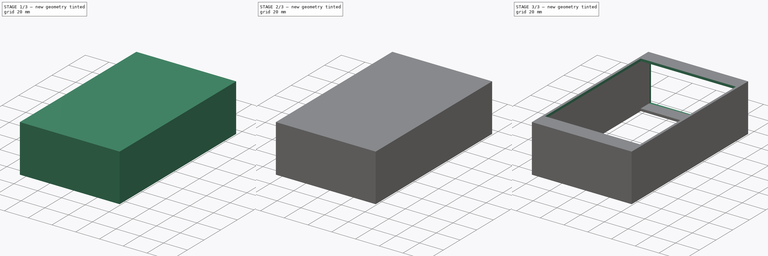
[diagram: build sequence overview — one tinted view per stage of 3, left to right]
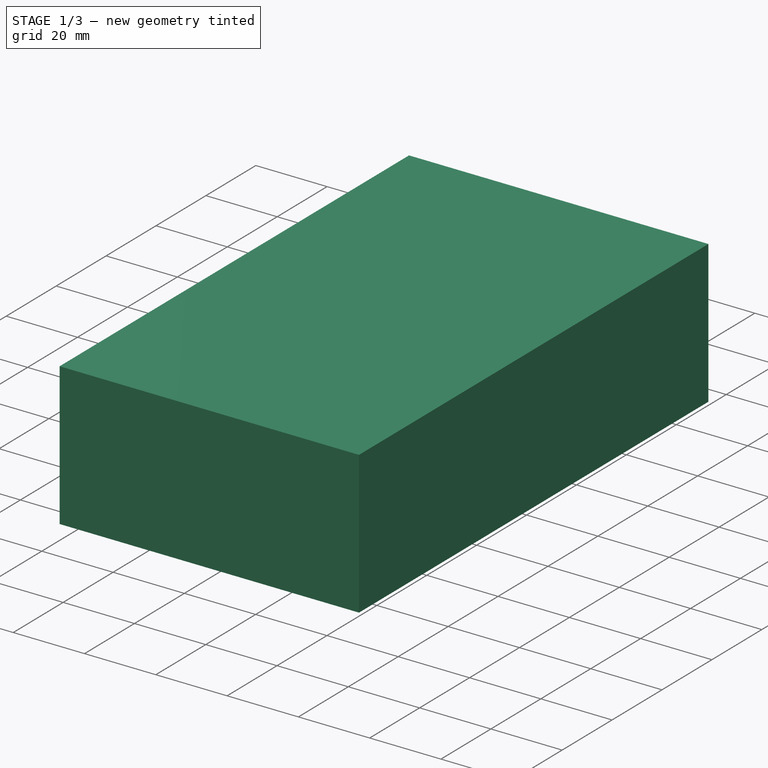
[diagram: stage 1 of 3 — iso view after this stage's code; geometry added in this stage tinted green]
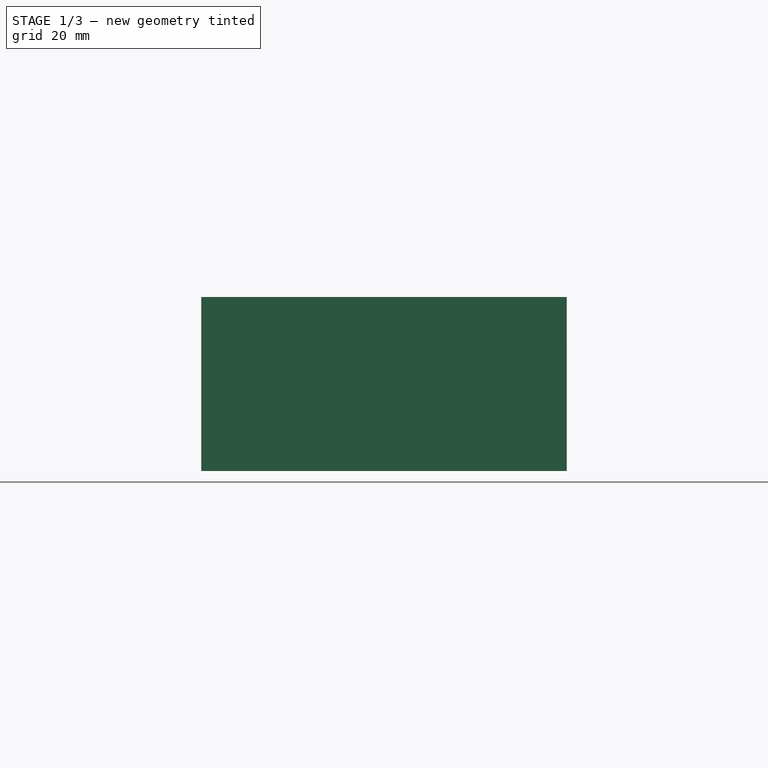
[diagram: stage 1 of 3 — front view after this stage's code; geometry added in this stage tinted green]
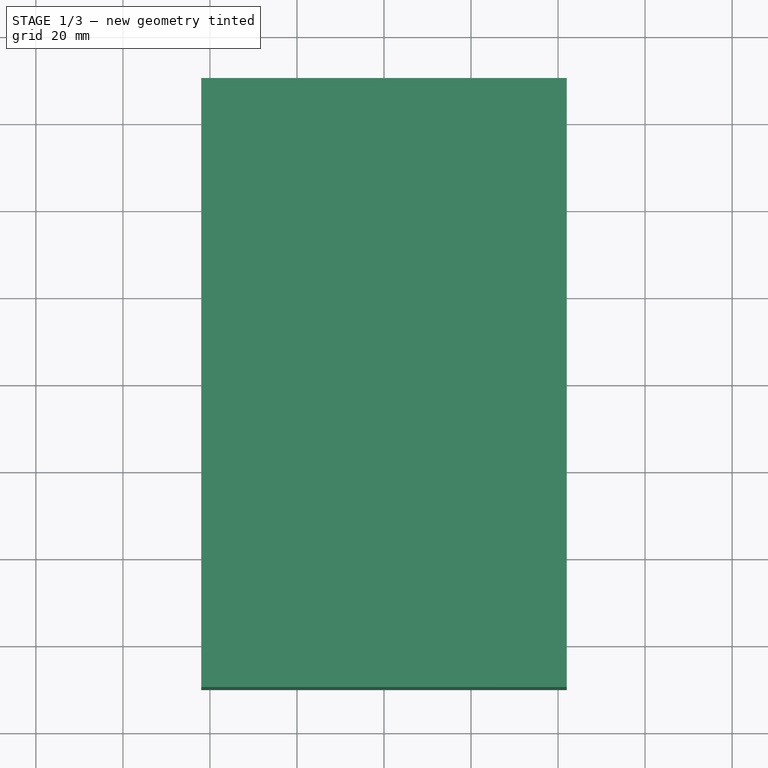
[diagram: stage 1 of 3 — top view after this stage's code; geometry added in this stage tinted green]
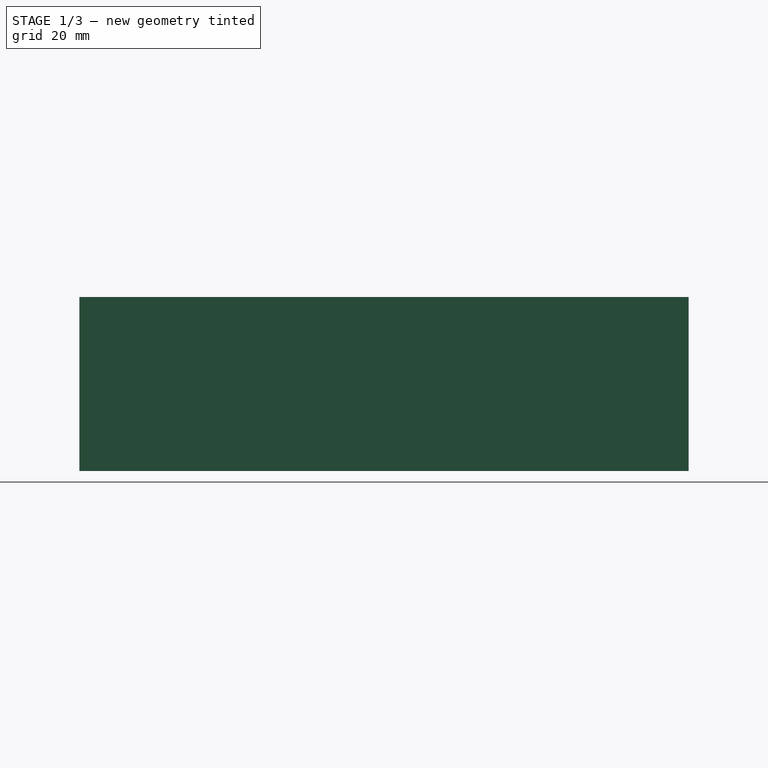
[diagram: stage 1 of 3 — right view after this stage's code; geometry added in this stage tinted green]
FCSTD DOCUMENT  (FreeCAD 0.19R24291 (Git))
Label: multi_meter_case
License: All rights reserved
LicenseURL: http://en.wikipedia.org/wiki/All_rights_reserved
objects: Sketcher::SketchObject×5, PartDesign::Pocket×4, PartDesign::Pad×1, PartDesign::Body×1
note: 16 computed .brp shape members not serialized (recipe doc carries the construction recipe); baked Part::Feature solids carry a one-line shape summary decoded from their .brp

FEATURE [Sketcher::SketchObject] Sketch
  FullyConstrained = true
  MapMode = 5
  Support = -> [XY_Plane]
  sketch-geometry (4):
    g0: LineSegment StartX=-42 StartY=70 StartZ=0 EndX=42 EndY=70 EndZ=0
    g1: LineSegment StartX=42 StartY=70 StartZ=0 EndX=42 EndY=-70 EndZ=0
    g2: LineSegment StartX=42 StartY=-70 StartZ=0 EndX=-42 EndY=-70 EndZ=0
    g3: LineSegment StartX=-42 StartY=-70 StartZ=0 EndX=-42 EndY=70 EndZ=0
  constraints (10):
    c: Coincident(g0,g1)
    c: Coincident(g1,g2)
    c: Coincident(g2,g3)
    c: Coincident(g3,g0)
    c: Horizontal(g0)
    c: Vertical(g3)
    c: DistanceX(g2,g2) = 84
    c: DistanceY(g3,g3) = 140
    c: Symmetric(g1,g2,g-2)
    c: Symmetric(g1,g0,g-1)
FEATURE [PartDesign::Pad] Pad
  Direction = (1,1,1)
  Length = 40
  Length2 = 100
  Profile = -> Sketch
  Refine = true
  Type = 0
FEATURE [Sketcher::SketchObject] Sketch001
  AttachmentOffset = pos=(0,0,38) rot=(0,0,1;0rad)
  FullyConstrained = true
  MapMode = 5
  Placement = pos=(0,0,38) rot=(0,0,1;0rad)
  Support = -> [XY_Plane]
  sketch-geometry (4):
    g0: LineSegment StartX=-40 StartY=68 StartZ=0 EndX=40 EndY=68 EndZ=0
    g1: LineSegment StartX=40 StartY=68 StartZ=0 EndX=40 EndY=-68 EndZ=0
    g2: LineSegment StartX=40 StartY=-68 StartZ=0 EndX=-40 EndY=-68 EndZ=0
    g3: LineSegment StartX=-40 StartY=-68 StartZ=0 EndX=-40 EndY=68 EndZ=0
  constraints (10):
    c: Coincident(g0,g1)
    c: Coincident(g1,g2)
    c: Coincident(g2,g3)
    c: Coincident(g3,g0)
    c: Horizontal(g0)
    c: Vertical(g3)
    c: DistanceX(g2,g2) = 80
    c: DistanceY(g3,g3) = 136
    c: Symmetric(g1,g2,g-2)
    c: Symmetric(g1,g0,g-1)
FEATURE [PartDesign::Pocket] Pocket
  BaseFeature = -> Pad
  Length = 36
  Length2 = 100
  Profile = -> Sketch001
  Refine = true
  Type = 0
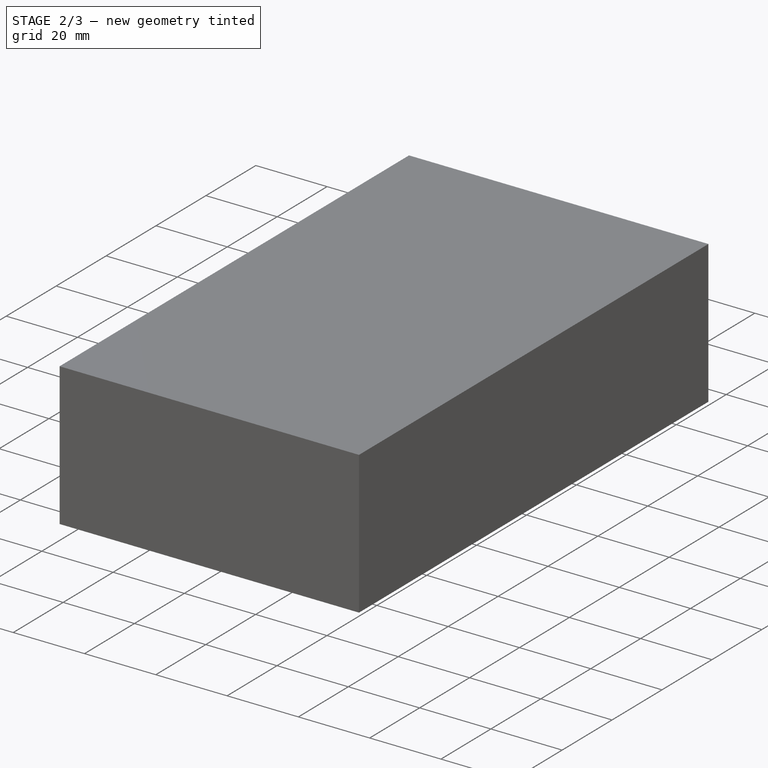
[diagram: stage 2 of 3 — iso view after this stage's code; geometry added in this stage tinted green]
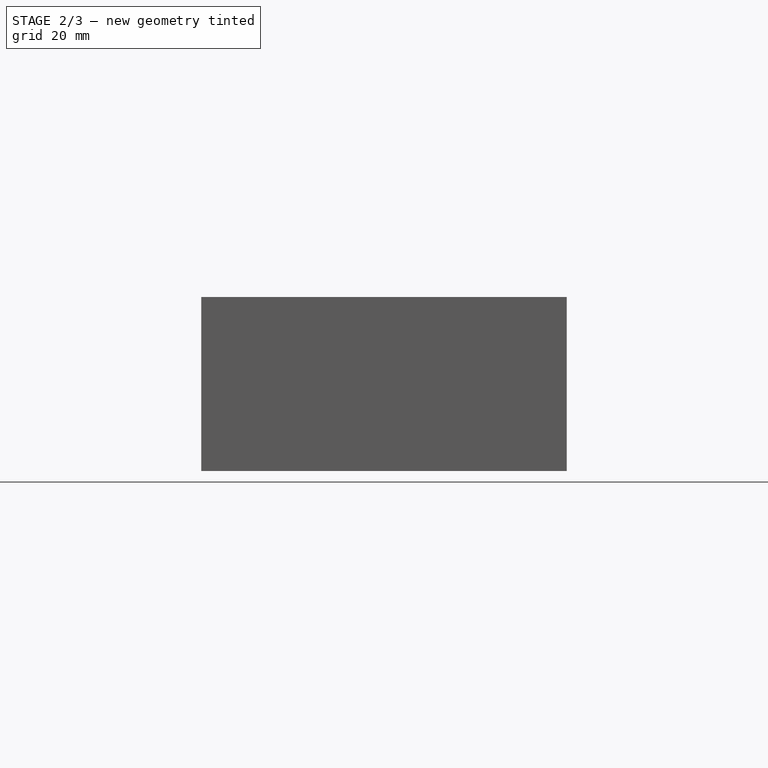
[diagram: stage 2 of 3 — front view after this stage's code; geometry added in this stage tinted green]
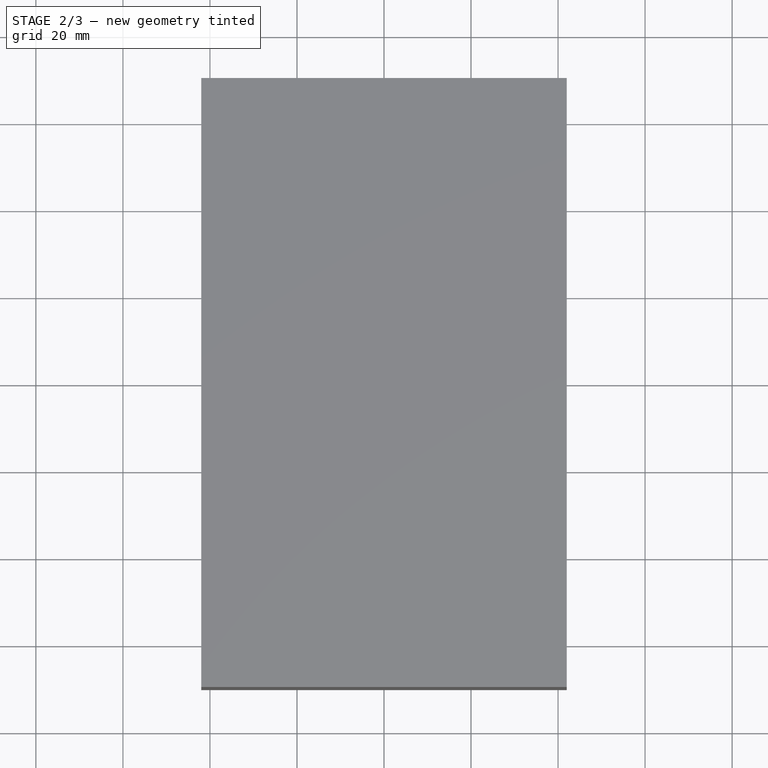
[diagram: stage 2 of 3 — top view after this stage's code; geometry added in this stage tinted green]
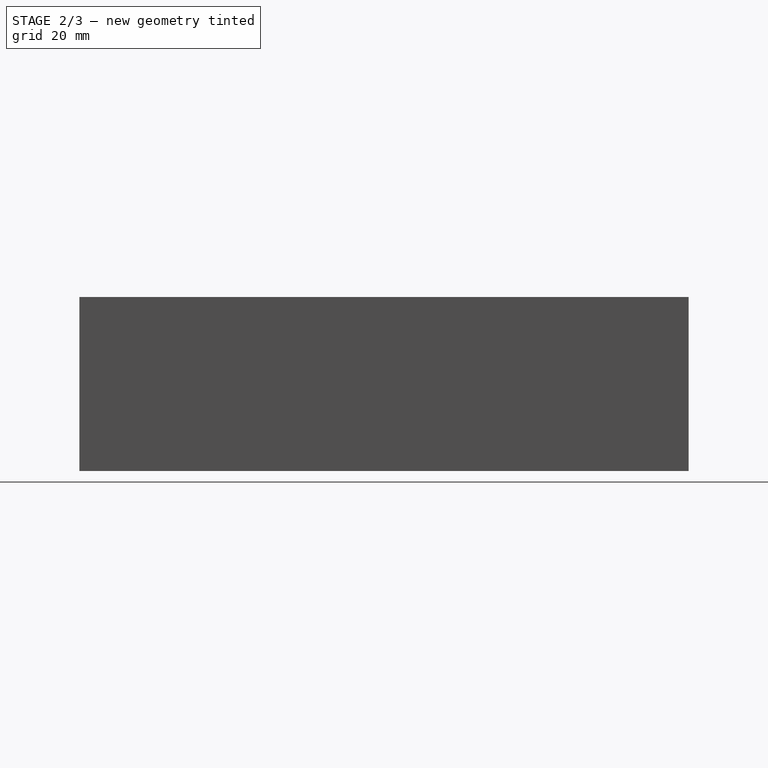
[diagram: stage 2 of 3 — right view after this stage's code; geometry added in this stage tinted green]
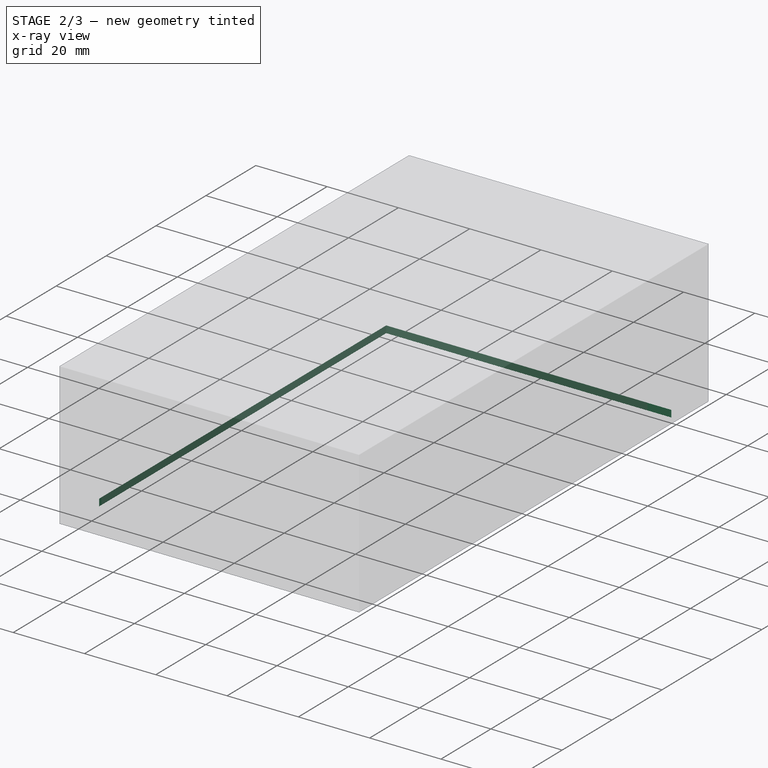
[diagram: stage 2 of 3 — x-ray composite at the iso view; earlier geometry ghosted, this stage's added geometry solid]
FEATURE [Sketcher::SketchObject] Sketch004
  ExternalGeometry = -> [Pocket]
  FullyConstrained = false
  MapMode = 5
  Support = -> [XY_Plane]
  sketch-geometry (4):
    g0: LineSegment StartX=-40 StartY=58 StartZ=0 EndX=40 EndY=58 EndZ=0
    g1: LineSegment StartX=40 StartY=58 StartZ=0 EndX=40 EndY=-57 EndZ=0
    g2: LineSegment StartX=40 StartY=-57 StartZ=0 EndX=-40 EndY=-57 EndZ=0
    g3: LineSegment StartX=-40 StartY=-57 StartZ=0 EndX=-40 EndY=58 EndZ=0
  constraints (10):
    c: Coincident(g0,g1)
    c: Coincident(g3,g0)
    c: Vertical(g1)
    c: Vertical(g3)
    c: Coincident(g2,g3)
    c: Coincident(g2,g1)
    c: Horizontal(g2)
    c: DistanceY(g1,g1) = 115
    c: Symmetric(g0,g0,g-2)
    c: DistanceX(g0,g0) = 80
FEATURE [PartDesign::Pocket] Pocket003
  BaseFeature = -> Pocket
  Length = 4
  Length2 = 100
  Profile = -> Sketch004
  Refine = true
  Reversed = true
  Type = 0
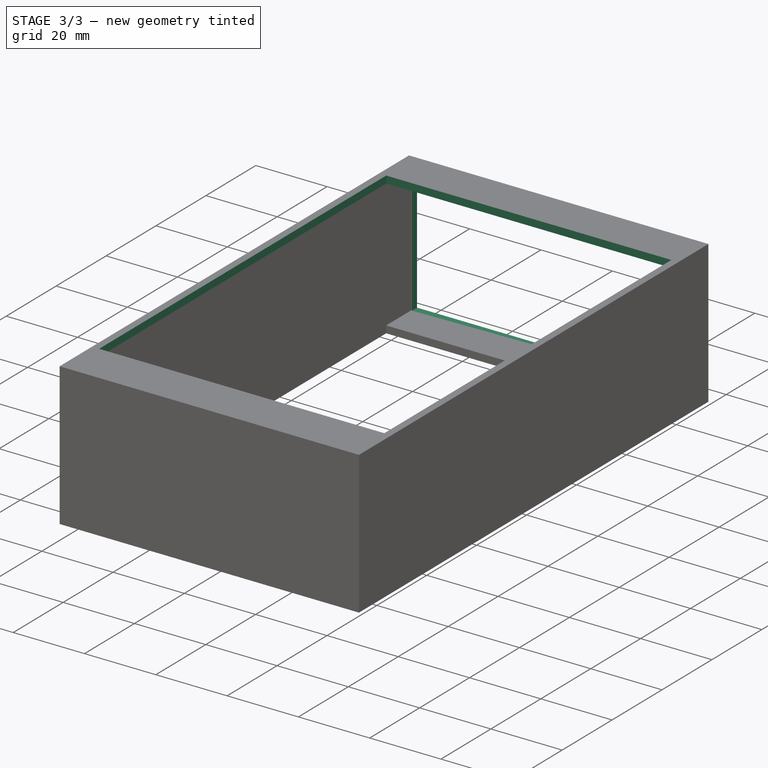
[diagram: stage 3 of 3 — iso view after this stage's code; geometry added in this stage tinted green]
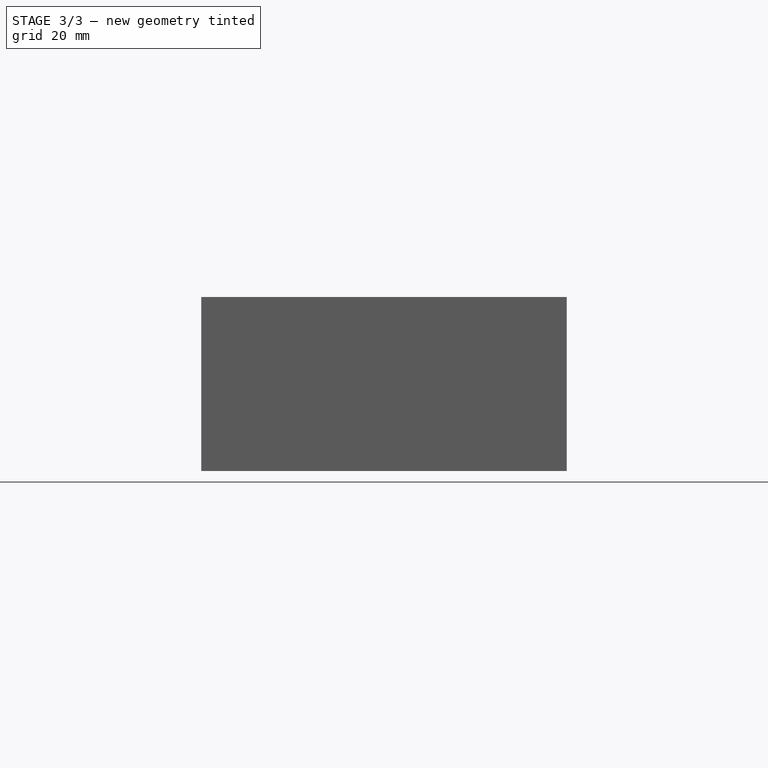
[diagram: stage 3 of 3 — front view after this stage's code; geometry added in this stage tinted green]
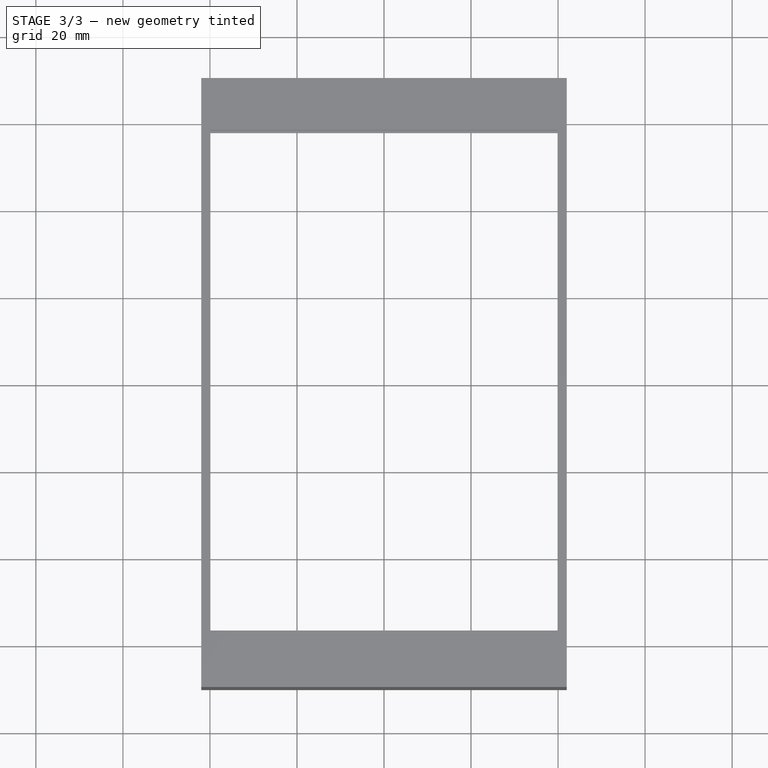
[diagram: stage 3 of 3 — top view after this stage's code; geometry added in this stage tinted green]
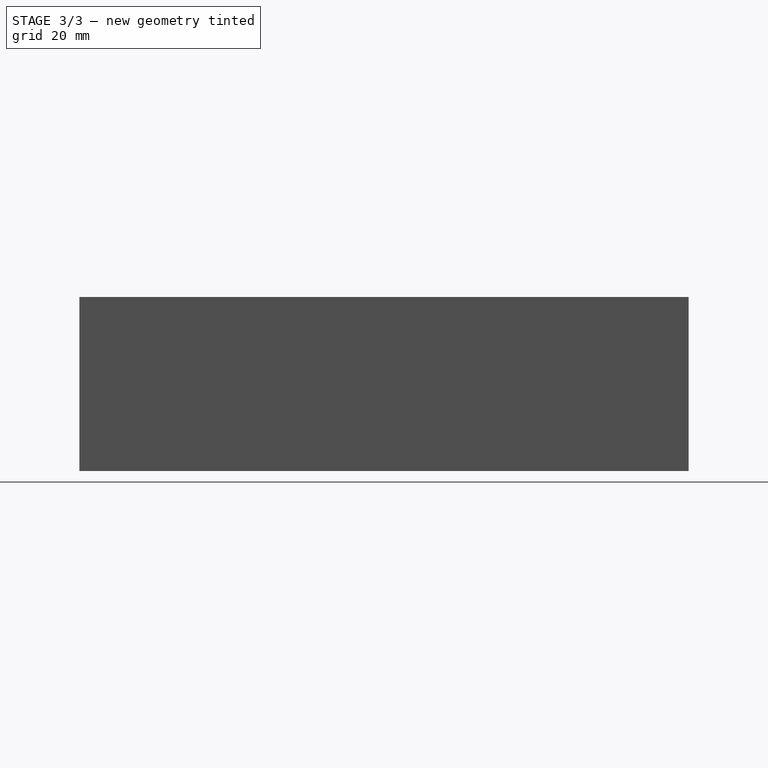
[diagram: stage 3 of 3 — right view after this stage's code; geometry added in this stage tinted green]
FEATURE [Sketcher::SketchObject] Sketch005
  AttachmentOffset = pos=(0,0,-70) rot=(0,0,1;0rad)
  ExternalGeometry = -> [Pocket003]
  FullyConstrained = false
  MapMode = 5
  Placement = pos=(0,70,1.55e-14) rot=(1,0,0;1.5708rad)
  Support = -> [XZ_Plane]
  sketch-geometry (4):
    g0: LineSegment StartX=-39.7522 StartY=38 StartZ=0 EndX=40 EndY=38 EndZ=0
    g1: LineSegment StartX=40 StartY=38 StartZ=0 EndX=40 EndY=2 EndZ=0
    g2: LineSegment StartX=40 StartY=2 StartZ=0 EndX=-39.7522 EndY=2 EndZ=0
    g3: LineSegment StartX=-39.7522 StartY=2 StartZ=0 EndX=-39.7522 EndY=38 EndZ=0
  constraints (9):
    c: Coincident(g0,g1)
    c: Coincident(g1,g2)
    c: Coincident(g2,g3)
    c: Coincident(g3,g0)
    c: Horizontal(g0)
    c: Horizontal(g2)
    c: Vertical(g1)
    c: Vertical(g3)
    c: Coincident(g0,g-3)
FEATURE [PartDesign::Pocket] Pocket004
  BaseFeature = -> Pocket003
  Length = 2
  Length2 = 100
  Profile = -> Sketch005
  Refine = true
  Reversed = true
  Type = 0
FEATURE [Sketcher::SketchObject] Sketch006
  AttachmentOffset = pos=(0,0,40) rot=(0,0,1;0rad)
  ExternalGeometry = -> [Pocket]
  FullyConstrained = false
  MapMode = 5
  Placement = pos=(0,0,40) rot=(0,0,1;0rad)
  Support = -> [XY_Plane]
  sketch-geometry (4):
    g0: LineSegment StartX=-40 StartY=58 StartZ=0 EndX=40 EndY=58 EndZ=0
    g1: LineSegment StartX=40 StartY=58 StartZ=0 EndX=40 EndY=-57 EndZ=0
    g2: LineSegment StartX=40 StartY=-57 StartZ=0 EndX=-40 EndY=-57 EndZ=0
    g3: LineSegment StartX=-40 StartY=-57 StartZ=0 EndX=-40 EndY=58 EndZ=0
  constraints (10):
    c: Coincident(g0,g1)
    c: Coincident(g3,g0)
    c: Vertical(g1)
    c: Vertical(g3)
    c: Coincident(g2,g3)
    c: Coincident(g2,g1)
    c: Horizontal(g2)
    c: DistanceY(g1,g1) = 115
    c: Symmetric(g0,g0,g-2)
    c: DistanceX(g0,g0) = 80
FEATURE [PartDesign::Pocket] Pocket005
  BaseFeature = -> Pocket004
  Length = 2
  Length2 = 100
  Profile = -> Sketch006
  Refine = true
  Type = 0
FEATURE [PartDesign::Body] Body
  Group = -> [Sketch,Pad,Sketch001,Pocket,Sketch004,Pocket003,Sketch005,Pocket004,Sketch006,Pocket005]
  Origin = -> Origin
  Tip = -> Pocket005
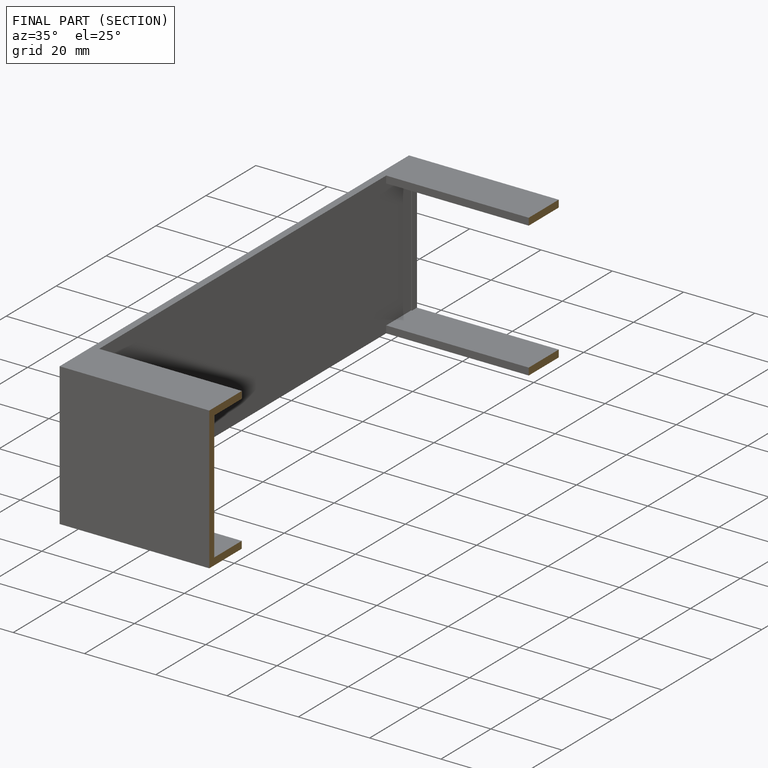
[diagram: finished part — half-section view (interior)]
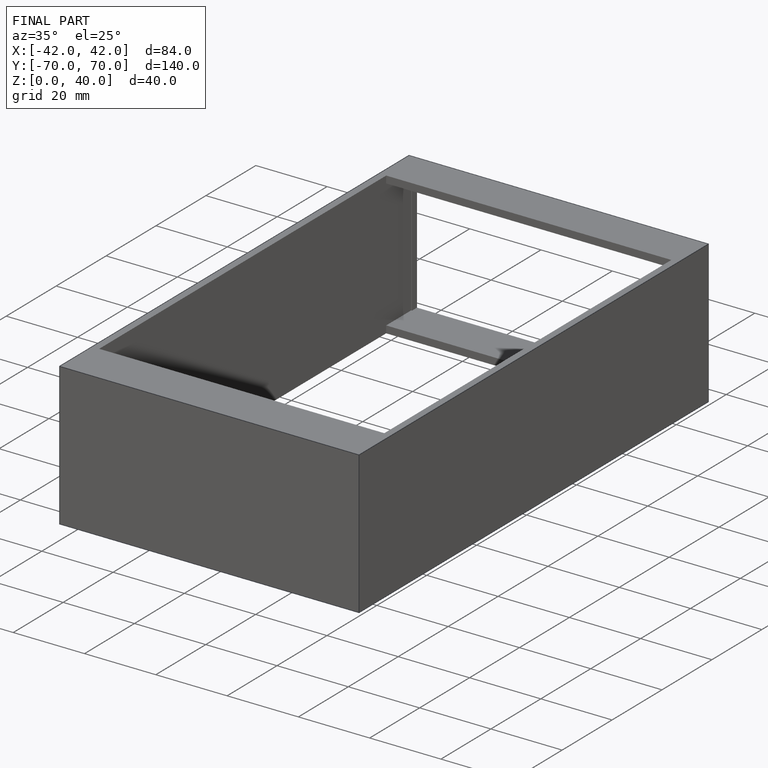
[diagram: finished part — iso view with bounding-box wireframe]
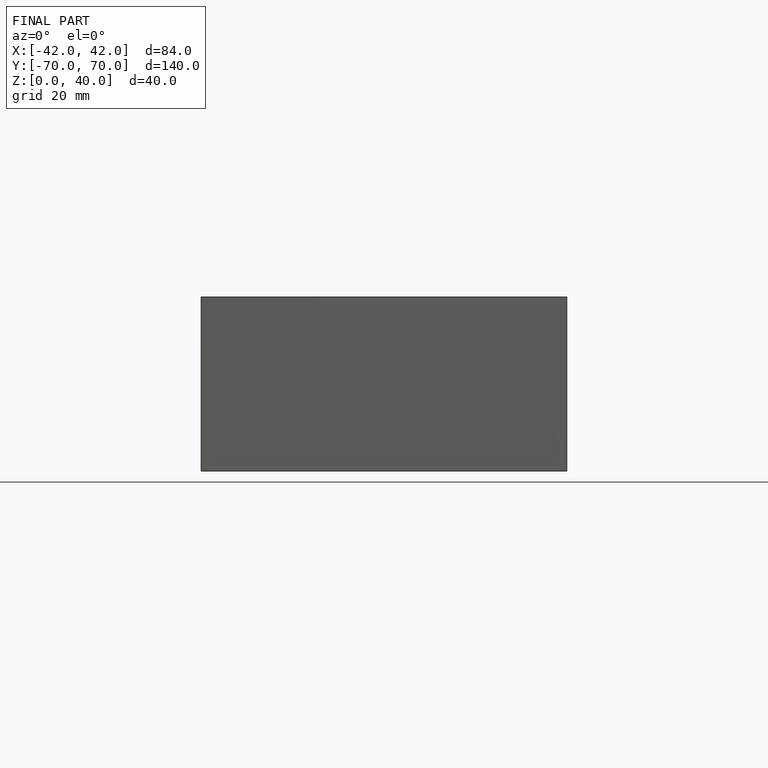
[diagram: finished part — front view with bounding-box wireframe]
